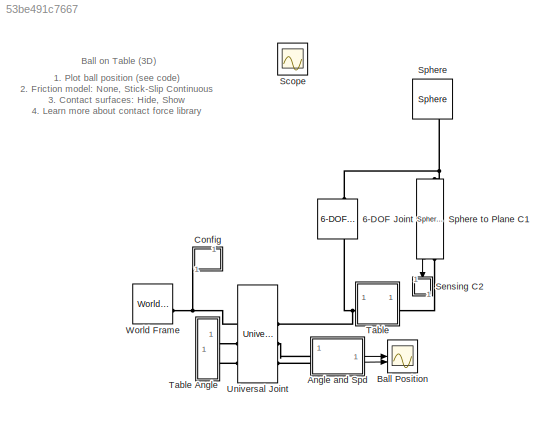
MODEL slx_53be491c7667
KIND model
CONFIG AbsTol = 1e-5
CONFIG EnableMultiTasking = on
CONFIG FixedStep = auto
CONFIG MaxStep = 1e-2
CONFIG MinStep = auto
CONFIG RelTol = 1e-4
CONFIG SampleTimeConstraint = Unconstrained
CONFIG SolverName = ode23t
CONFIG StartFcn = tic;
CONFIG StartTime = 0.0
CONFIG StopFcn = Elapsed_Sim_Time = toc;\ndisp(['Elapsed Sim Time = ' num2str(Elapsed_Sim_Time)]);\n
CONFIG StopTime = 48
WORKSPACE source: MATLAB code (in-file)
WORKSPACE code: ball.rad = 0.2;
WORKSPACE code: table.l = 3;
WORKSPACE code: table.h = 0.1;
WORKSPACE code: table.w = 3;
WORKSPACE code: ballTable.friction.muk = 0.6;
WORKSPACE code: ballTable.friction.mus = 0.7;
BLOCK [Reference] 6-DOF Joint  REF=sm_lib/Joints/6-DOF Joint
  NameLocation = left
  SourceBlock = sm_lib/Joints/6-DOF Joint
  SourceType = 6-DOF Joint
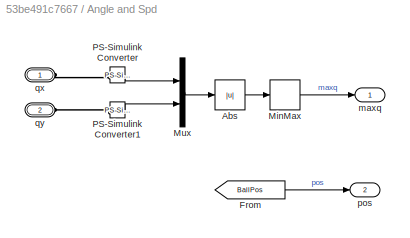
BLOCK [SubSystem] Angle and Spd
BLOCK [Abs] Angle and Spd/Abs
  SaturateOnIntegerOverflow = off
  ZeroCross = off
BLOCK [From] Angle and Spd/From
  GotoTag = BallPos
  TagVisibility = global
BLOCK [MinMax] Angle and Spd/MinMax
  Function = max
  ZeroCross = off
BLOCK [Mux] Angle and Spd/Mux
  DisplayOption = bar
  Inputs = 2
BLOCK [Reference] Angle and Spd/PS-Simulink Converter  REF=nesl_utility/PS-Simulink
Converter
  SourceBlock = nesl_utility/PS-Simulink\nConverter
  SourceType = PS-Simulink\nConverter
BLOCK [Reference] Angle and Spd/PS-Simulink Converter1  REF=nesl_utility/PS-Simulink
Converter
  SourceBlock = nesl_utility/PS-Simulink\nConverter
  SourceType = PS-Simulink\nConverter
BLOCK [Outport] Angle and Spd/maxq
  NameLocation = top
  VectorParamsAs1DForOutWhenUnconnected = off
BLOCK [Outport] Angle and Spd/pos
  Port = 2
  VectorParamsAs1DForOutWhenUnconnected = off
BLOCK [PMIOPort] Angle and Spd/qx
  Side = Left
BLOCK [PMIOPort] Angle and Spd/qy
  Port = 2
  Side = Left
BLOCK [Scope] Ball Position
  Floating = off
  NumInputPorts = 2
  ScopeSpecificationString = Simulink.scopes.TimeScopeBlockCfg('CurrentConfiguration', extmgr.ConfigurationSet(extmgr.Configuration('Core','General UI',true,'FigureColor',[0.501960784313725 0.501960784313725 0.501960784313725]),extmgr.Configuration('Core','Source UI',true),extmgr.Configuration('Sources','WiredSimulink',true,'DataLoggingSaveFormat','StructureWithTime','DataLoggingDecimation','1','DataLoggingDecimateData',true)...<+3768ch>
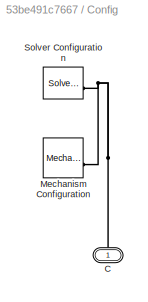
BLOCK [SubSystem] Config
  NameLocation = right
BLOCK [PMIOPort] Config/C
  NameLocation = right
  Side = Left
BLOCK [Reference] Config/Mechanism Configuration  REF=sm_lib/Utilities/Mechanism
Configuration
  SourceBlock = sm_lib/Utilities/Mechanism\nConfiguration
  SourceType = Mechanism\nConfiguration
BLOCK [Reference] Config/Solver Configuration  REF=nesl_utility/Solver
Configuration
  SourceBlock = nesl_utility/Solver\nConfiguration
  SourceType = Solver\nConfiguration
BLOCK [Scope] Scope
  Floating = off
  IOType = viewer
  NumInputPorts = 1
  ScopeSpecificationString = C++SS(StrPVP('Location','[610, 115, 1102, 652]'),StrPVP('Open','off'),MxPVP('AxesTitles',54,'struct(''axes1'',''%<SignalLabel>'')'),MxPVP('ScopeGraphics',57,'struct(''FigureColor'',''[0.5 0.5 0.5]'',''AxesColor'',''[0 0 0]'',''AxesTickColor'',''[1 1 1]'',''LineColors'',''[1 1 0;1 0 1;0 1 1;1 0 0;0 1 0;0 0 1]'',''LineStyles'',''-|-|-|-|-|-'',''LineWidths'',''[0.5 0.5 0.5 0.5 0.5 0.5]'',''MarkerStyl...<+304ch>
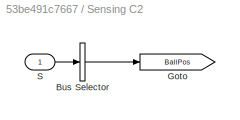
BLOCK [SubSystem] Sensing C2
  NameLocation = left
BLOCK [BusSelector] Sensing C2/Bus Selector
  OutputAsBus = on
  OutputSignals = Frame Sep.x,Frame Sep.y
BLOCK [Goto] Sensing C2/Goto
  GotoTag = BallPos
  TagVisibility = global
BLOCK [Inport] Sensing C2/S
  NameLocation = top
BLOCK [Reference] Sphere  REF=Parts_Lib/Sphere
  NameLocation = right
  SourceBlock = Parts_Lib/Sphere
  SourceType = Sphere with Markings
  Tag = CustomStyle
BLOCK [Reference] Sphere to Plane C1  REF=Contact_Forces_Lib/3D/Sphere to Plane Force
  NameLocation = left
  SourceBlock = Contact_Forces_Lib/3D/Sphere to Plane Force
  SourceProductName = Simscape Multibody Contact Forces Library
  SourceType = Sphere to Plane Force
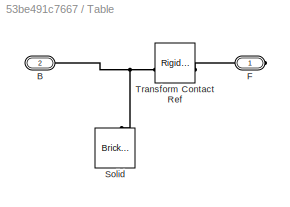
BLOCK [SubSystem] Table
  NameLocation = top
  Tag = CustomStyle
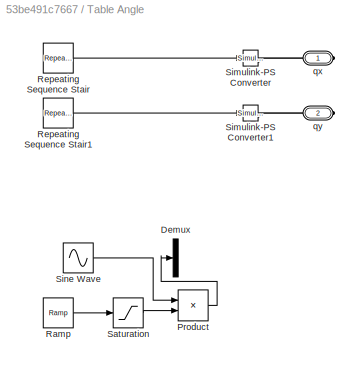
BLOCK [SubSystem] Table Angle
BLOCK [Demux] Table Angle/Demux
  Outputs = 2
BLOCK [Product] Table Angle/Product
BLOCK [Reference] Table Angle/Ramp  REF=simulink/Sources/Ramp
  SourceBlock = simulink/Sources/Ramp
  SourceType = Ramp
BLOCK [Reference] Table Angle/Repeating Sequence Stair  REF=simulink/Sources/Repeating
Sequence
Stair
  SourceBlock = simulink/Sources/Repeating\nSequence\nStair
  SourceType = Repeating Sequence Stair
BLOCK [Reference] Table Angle/Repeating Sequence Stair1  REF=simulink/Sources/Repeating
Sequence
Stair
  SourceBlock = simulink/Sources/Repeating\nSequence\nStair
  SourceType = Repeating Sequence Stair
BLOCK [Saturate] Table Angle/Saturation
  LowerLimit = 0
  UpperLimit = 1
BLOCK [Reference] Table Angle/Simulink-PS Converter  REF=nesl_utility/Simulink-PS
Converter
  SourceBlock = nesl_utility/Simulink-PS\nConverter
  SourceType = Simulink-PS\nConverter
BLOCK [Reference] Table Angle/Simulink-PS Converter1  REF=nesl_utility/Simulink-PS
Converter
  SourceBlock = nesl_utility/Simulink-PS\nConverter
  SourceType = Simulink-PS\nConverter
BLOCK [Sin] Table Angle/Sine Wave
  Amplitude = [1 1]*15
  Bias = [1 1]*0
  Frequency = [1 1]*360*(pi/180)/2
  Phase = [0 pi/2]
  SampleTime = 0
BLOCK [PMIOPort] Table Angle/qx
  Side = Right
BLOCK [PMIOPort] Table Angle/qy
  Port = 2
  Side = Right
BLOCK [PMIOPort] Table/B
  Port = 2
  Side = Left
BLOCK [PMIOPort] Table/F
  Side = Right
BLOCK [Reference] Table/Solid  REF=sm_lib/Body Elements/Brick Solid
  NameLocation = right
  SourceBlock = sm_lib/Body Elements/Brick Solid
  SourceType = Brick Solid
BLOCK [Reference] Table/Transform Contact Ref  REF=sm_lib/Frames and
Transforms/Rigid
Transform
  SourceBlock = sm_lib/Frames and\nTransforms/Rigid\nTransform
  SourceType = Rigid\nTransform
BLOCK [Reference] Universal Joint  REF=sm_lib/Joints/Universal
Joint
  SourceBlock = sm_lib/Joints/Universal\nJoint
  SourceType = Universal\nJoint
BLOCK [Reference] World Frame  REF=sm_lib/Frames and
Transforms/World Frame
  SourceBlock = sm_lib/Frames and\nTransforms/World Frame
  SourceType = World Frame
ANNOTATION (root): 1. Plot ball position ( see code ) 2. Friction model: None , Stick-Slip Continuous 3. Contact surfaces: Hide , Show 4. Learn more about contact force library
ANNOTATION (root): Ball on Table (3D)
LINE Angle and Spd/Abs:1 -> Angle and Spd/MinMax:1
LINE Angle and Spd/From:1 -> Angle and Spd/pos:1
LINE Angle and Spd/MinMax:1 -> Angle and Spd/maxq:1
LINE Angle and Spd/Mux:1 -> Angle and Spd/Abs:1
LINE Angle and Spd/PS-Simulink Converter1:1 -> Angle and Spd/Mux:2
LINE Angle and Spd/PS-Simulink Converter:1 -> Angle and Spd/Mux:1
LINE Angle and Spd:1 -> Ball Position:1
LINE Angle and Spd:2 -> Ball Position:2
LINE Sensing C2/Bus Selector:1 -> Sensing C2/Goto:1
LINE Sensing C2/S:1 -> Sensing C2/Bus Selector:1
LINE Sphere to Plane C1:1 -> Sensing C2:1
LINE Table Angle/Product:1 -> Table Angle/Demux:1
LINE Table Angle/Ramp:1 -> Table Angle/Saturation:1
LINE Table Angle/Repeating Sequence Stair1:1 -> Table Angle/Simulink-PS Converter1:1
LINE Table Angle/Repeating Sequence Stair:1 -> Table Angle/Simulink-PS Converter:1
LINE Table Angle/Saturation:1 -> Table Angle/Product:2
LINE Table Angle/Sine Wave:1 -> Table Angle/Product:1
PNET net1: 6-DOF Joint:LConn1 -- Table:LConn1 -- Universal Joint:RConn1
PNET net2: 6-DOF Joint:RConn1 -- Sphere to Plane C1:LConn1 -- Sphere:LConn1
PLINE Angle and Spd/PS-Simulink Converter1:LConn1 -- Angle and Spd/qy:RConn1
PLINE Angle and Spd/PS-Simulink Converter:LConn1 -- Angle and Spd/qx:RConn1
PLINE Angle and Spd:LConn1 -- Universal Joint:RConn2
PLINE Angle and Spd:LConn2 -- Universal Joint:RConn3
PNET net3: Config/C:RConn1 -- Config/Mechanism Configuration:RConn1 -- Config/Solver Configuration:RConn1
PNET net4: Config:LConn1 -- Universal Joint:LConn1 -- World Frame:RConn1
PLINE Sphere to Plane C1:RConn1 -- Table:RConn1
PLINE Table Angle/Simulink-PS Converter1:RConn1 -- Table Angle/qy:RConn1
PLINE Table Angle/Simulink-PS Converter:RConn1 -- Table Angle/qx:RConn1
PLINE Table Angle:RConn1 -- Universal Joint:LConn2
PLINE Table Angle:RConn2 -- Universal Joint:LConn3
PNET net5: Table/B:RConn1 -- Table/Solid:RConn1 -- Table/Transform Contact Ref:LConn1
PLINE Table/F:RConn1 -- Table/Transform Contact Ref:RConn1
note: PNET lines group multi-terminal physical nets as a canonical sorted terminal list (undirected conserving connections); 2-terminal nets keep the pairwise PLINE form
